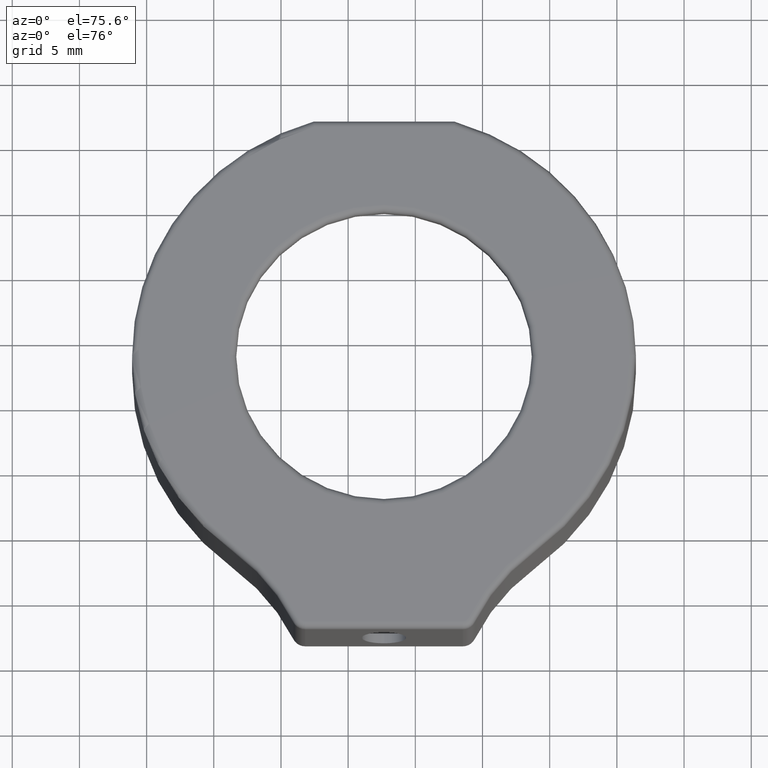
[diagram: clean part render]
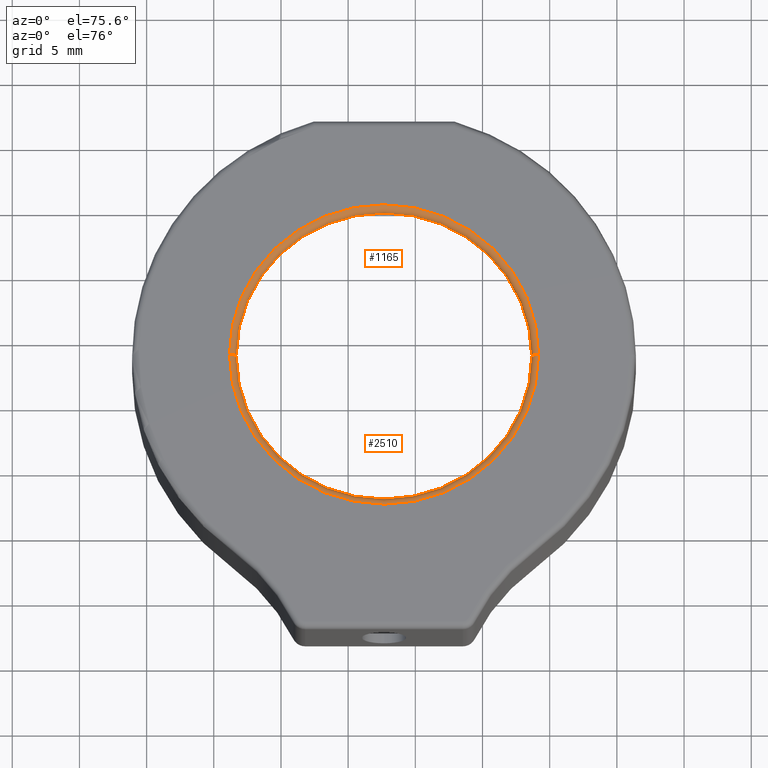
[diagram: same view with one multi-face feature highlighted, each face labeled with its STEP entity id]
A machine part, auxiliary view. The highlighted faces form ONE feature: a constant-radius fillet chain: 2 tangent blend faces with common blend radius 0.5 mm. The faces share edges in the B-rep.
Their STEP definitions:
[1] entity #2510 (Torus):
#29 = VERTEX_POINT ( 'NONE', #573 ) ;
#45 = AXIS2_PLACEMENT_3D ( 'NONE', #2066, #1399, #2509 ) ;
#51 = DIRECTION ( 'NONE',  ( -0.0000000000000000000, 0.0000000000000000000, 1.000000000000000000 ) ) ;
#115 = VERTEX_POINT ( 'NONE', #2329 ) ;
#118 = CIRCLE ( 'NONE', #2725, 11.50000000000000000 ) ;
#126 = VERTEX_POINT ( 'NONE', #870 ) ;
#178 = CARTESIAN_POINT ( 'NONE',  ( 2.667861014286739200, 2.577405409616099400, 44.99999999998590300 ) ) ;
#304 = CIRCLE ( 'NONE', #45, 11.00000000000000000 ) ;
#393 = TOROIDAL_SURFACE ( 'NONE', #1904, 11.50000000000000000, 0.5000000000000000000 ) ;
#407 = CIRCLE ( 'NONE', #2185, 0.5000000000000004400 ) ;
#517 = DIRECTION ( 'NONE',  ( 1.000000000000000000, 0.0000000000000000000, 0.0000000000000000000 ) ) ;
#524 = ORIENTED_EDGE ( 'NONE', *, *, #2674, .F. ) ;
#540 = AXIS2_PLACEMENT_3D ( 'NONE', #1816, #2272, #946 ) ;
#573 = CARTESIAN_POINT ( 'NONE',  ( -8.832138985713260800, 2.577405409616100800, 44.99999999998590300 ) ) ;
#833 = EDGE_LOOP ( 'NONE', ( #1432, #524, #1537, #2689 ) ) ;
#870 = CARTESIAN_POINT ( 'NONE',  ( 14.16786101428673900, 2.577405409616099400, 44.99999999998590300 ) ) ;
#929 = EDGE_CURVE ( 'NONE', #2174, #115, #304, .T. ) ;
#946 = DIRECTION ( 'NONE',  ( 0.0000000000000000000, 0.0000000000000000000, -1.000000000000000000 ) ) ;
#1263 = DIRECTION ( 'NONE',  ( 1.224646799147353200E-016, 1.000000000000000000, 0.0000000000000000000 ) ) ;
#1319 = EDGE_CURVE ( 'NONE', #126, #115, #2627, .T. ) ;
#1340 = CARTESIAN_POINT ( 'NONE',  ( 2.667861014286739200, 2.577405409616099400, 44.49999999998590300 ) ) ;
#1399 = DIRECTION ( 'NONE',  ( -0.0000000000000000000, 0.0000000000000000000, 1.000000000000000000 ) ) ;
#1400 = FACE_OUTER_BOUND ( 'NONE', #833, .T. ) ;
#1432 = ORIENTED_EDGE ( 'NONE', *, *, #1634, .F. ) ;
#1490 = CARTESIAN_POINT ( 'NONE',  ( -8.832138985713260800, 2.577405409616100800, 44.49999999998590300 ) ) ;
#1508 = DIRECTION ( 'NONE',  ( -1.000000000000000000, 0.0000000000000000000, 0.0000000000000000000 ) ) ;
#1537 = ORIENTED_EDGE ( 'NONE', *, *, #1319, .T. ) ;
#1634 = EDGE_CURVE ( 'NONE', #29, #2174, #407, .T. ) ;
#1816 = CARTESIAN_POINT ( 'NONE',  ( 14.16786101428673900, 2.577405409616099400, 44.49999999998590300 ) ) ;
#1890 = DIRECTION ( 'NONE',  ( 1.000000000000000000, 0.0000000000000000000, 0.0000000000000000000 ) ) ;
#1904 = AXIS2_PLACEMENT_3D ( 'NONE', #1340, #51, #517 ) ;
#2066 = CARTESIAN_POINT ( 'NONE',  ( 2.667861014286739200, 2.577405409616099400, 44.49999999998590300 ) ) ;
#2088 = CARTESIAN_POINT ( 'NONE',  ( -8.332138985713260800, 2.577405409616099400, 44.49999999998590300 ) ) ;
#2174 = VERTEX_POINT ( 'NONE', #2088 ) ;
#2185 = AXIS2_PLACEMENT_3D ( 'NONE', #1490, #1263, #1508 ) ;
#2272 = DIRECTION ( 'NONE',  ( 0.0000000000000000000, -1.000000000000000000, 0.0000000000000000000 ) ) ;
#2329 = CARTESIAN_POINT ( 'NONE',  ( 13.66786101428673900, 2.577405409616100800, 44.49999999998590300 ) ) ;
#2509 = DIRECTION ( 'NONE',  ( 1.000000000000000000, 0.0000000000000000000, 0.0000000000000000000 ) ) ;
#2510 = ADVANCED_FACE ( 'NONE', ( #1400 ), #393, .T. ) ;
#2627 = CIRCLE ( 'NONE', #540, 0.5000000000000004400 ) ;
#2674 = EDGE_CURVE ( 'NONE', #126, #29, #118, .T. ) ;
#2689 = ORIENTED_EDGE ( 'NONE', *, *, #929, .F. ) ;
#2725 = AXIS2_PLACEMENT_3D ( 'NONE', #178, #2752, #1890 ) ;
#2752 = DIRECTION ( 'NONE',  ( 0.0000000000000000000, -0.0000000000000000000, -1.000000000000000000 ) ) ;
[2] entity #1165 (Torus):
#1 = TOROIDAL_SURFACE ( 'NONE', #2342, 11.50000000000000000, 0.5000000000000000000 ) ;
#29 = VERTEX_POINT ( 'NONE', #573 ) ;
#67 = CIRCLE ( 'NONE', #1857, 11.50000000000000000 ) ;
#115 = VERTEX_POINT ( 'NONE', #2329 ) ;
#126 = VERTEX_POINT ( 'NONE', #870 ) ;
#232 = DIRECTION ( 'NONE',  ( -0.0000000000000000000, 0.0000000000000000000, 1.000000000000000000 ) ) ;
#312 = ORIENTED_EDGE ( 'NONE', *, *, #1319, .F. ) ;
#407 = CIRCLE ( 'NONE', #2185, 0.5000000000000004400 ) ;
#487 = DIRECTION ( 'NONE',  ( 1.000000000000000000, 0.0000000000000000000, 0.0000000000000000000 ) ) ;
#505 = AXIS2_PLACEMENT_3D ( 'NONE', #2789, #2575, #2352 ) ;
#540 = AXIS2_PLACEMENT_3D ( 'NONE', #1816, #2272, #946 ) ;
#573 = CARTESIAN_POINT ( 'NONE',  ( -8.832138985713260800, 2.577405409616100800, 44.99999999998590300 ) ) ;
#636 = FACE_OUTER_BOUND ( 'NONE', #1285, .T. ) ;
#748 = EDGE_CURVE ( 'NONE', #29, #126, #67, .T. ) ;
#870 = CARTESIAN_POINT ( 'NONE',  ( 14.16786101428673900, 2.577405409616099400, 44.99999999998590300 ) ) ;
#888 = ORIENTED_EDGE ( 'NONE', *, *, #1634, .T. ) ;
#901 = DIRECTION ( 'NONE',  ( 0.0000000000000000000, -0.0000000000000000000, -1.000000000000000000 ) ) ;
#946 = DIRECTION ( 'NONE',  ( 0.0000000000000000000, 0.0000000000000000000, -1.000000000000000000 ) ) ;
#1074 = DIRECTION ( 'NONE',  ( 1.000000000000000000, 0.0000000000000000000, 0.0000000000000000000 ) ) ;
#1165 = ADVANCED_FACE ( 'NONE', ( #636 ), #1, .T. ) ;
#1263 = DIRECTION ( 'NONE',  ( 1.224646799147353200E-016, 1.000000000000000000, 0.0000000000000000000 ) ) ;
#1285 = EDGE_LOOP ( 'NONE', ( #1944, #888, #2336, #312 ) ) ;
#1319 = EDGE_CURVE ( 'NONE', #126, #115, #2627, .T. ) ;
#1490 = CARTESIAN_POINT ( 'NONE',  ( -8.832138985713260800, 2.577405409616100800, 44.49999999998590300 ) ) ;
#1508 = DIRECTION ( 'NONE',  ( -1.000000000000000000, 0.0000000000000000000, 0.0000000000000000000 ) ) ;
#1634 = EDGE_CURVE ( 'NONE', #29, #2174, #407, .T. ) ;
#1769 = CARTESIAN_POINT ( 'NONE',  ( 2.667861014286739200, 2.577405409616099400, 44.99999999998590300 ) ) ;
#1816 = CARTESIAN_POINT ( 'NONE',  ( 14.16786101428673900, 2.577405409616099400, 44.49999999998590300 ) ) ;
#1857 = AXIS2_PLACEMENT_3D ( 'NONE', #1769, #901, #487 ) ;
#1944 = ORIENTED_EDGE ( 'NONE', *, *, #748, .F. ) ;
#2088 = CARTESIAN_POINT ( 'NONE',  ( -8.332138985713260800, 2.577405409616099400, 44.49999999998590300 ) ) ;
#2155 = EDGE_CURVE ( 'NONE', #115, #2174, #2522, .T. ) ;
#2174 = VERTEX_POINT ( 'NONE', #2088 ) ;
#2185 = AXIS2_PLACEMENT_3D ( 'NONE', #1490, #1263, #1508 ) ;
#2272 = DIRECTION ( 'NONE',  ( 0.0000000000000000000, -1.000000000000000000, 0.0000000000000000000 ) ) ;
#2329 = CARTESIAN_POINT ( 'NONE',  ( 13.66786101428673900, 2.577405409616100800, 44.49999999998590300 ) ) ;
#2336 = ORIENTED_EDGE ( 'NONE', *, *, #2155, .F. ) ;
#2342 = AXIS2_PLACEMENT_3D ( 'NONE', #2560, #232, #1074 ) ;
#2352 = DIRECTION ( 'NONE',  ( 1.000000000000000000, 0.0000000000000000000, 0.0000000000000000000 ) ) ;
#2522 = CIRCLE ( 'NONE', #505, 11.00000000000000000 ) ;
#2560 = CARTESIAN_POINT ( 'NONE',  ( 2.667861014286739200, 2.577405409616099400, 44.49999999998590300 ) ) ;
#2575 = DIRECTION ( 'NONE',  ( -0.0000000000000000000, 0.0000000000000000000, 1.000000000000000000 ) ) ;
#2627 = CIRCLE ( 'NONE', #540, 0.5000000000000004400 ) ;
#2789 = CARTESIAN_POINT ( 'NONE',  ( 2.667861014286739200, 2.577405409616099400, 44.49999999998590300 ) ) ;